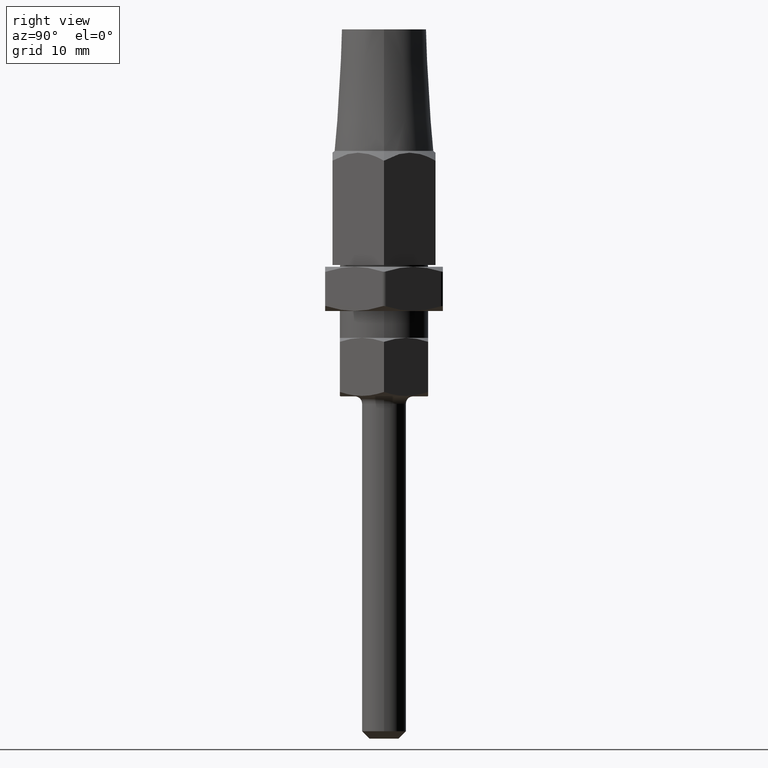
[diagram: clean part render]
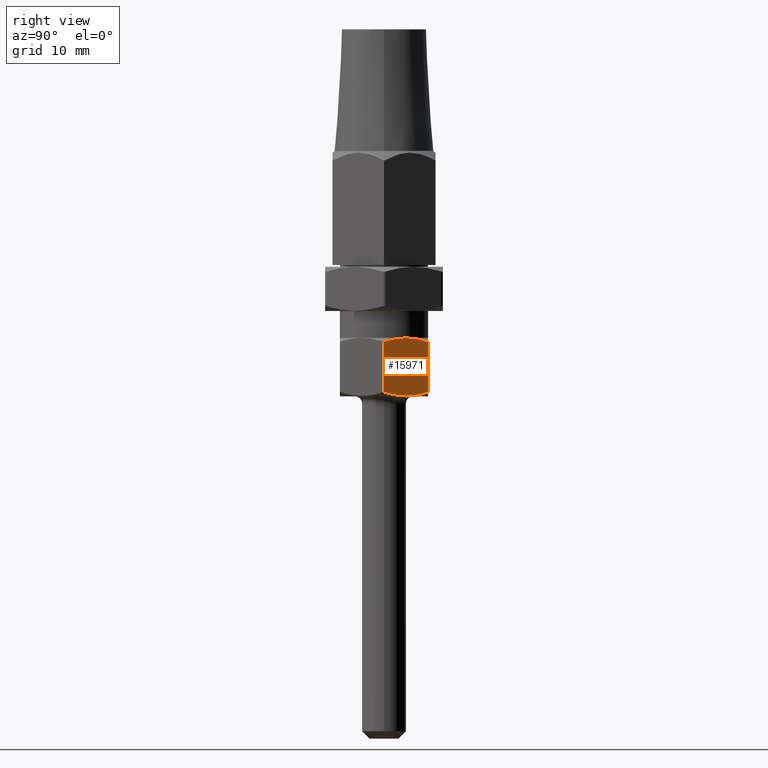
[diagram: same view with one face highlighted and labeled with its STEP entity id]
A machine part, right view. The second image highlights one B-rep face of the part: STEP entity #15971.
In plain terms, the highlighted planar face has unit normal (-0.866, -0.5, 0).
Its self-contained STEP definition (entity closure, byte-faithful):
#140 = B_SPLINE_CURVE_WITH_KNOTS ( 'NONE', 3,
 ( #6155, #10495, #7708, #2280 ),
 .UNSPECIFIED., .F., .F.,
 ( 4, 4 ),
 ( 2.380733613611680200E-007, 0.003505341872360753900 ),
 .UNSPECIFIED. ) ;
#553 = CARTESIAN_POINT ( 'NONE',  ( 6.928203230275509700, 1.677898197930134900E-015, 3.406366588218800600 ) ) ;
#1102 = CARTESIAN_POINT ( 'NONE',  ( 6.928203230275509700, 1.664489993444656200E-015, -3.406366588218800600 ) ) ;
#1443 = VECTOR ( 'NONE', #10882, 1000.000000000000000 ) ;
#2280 = CARTESIAN_POINT ( 'NONE',  ( 5.196152422706631100, 3.000000000000001800, 3.942264973081039500 ) ) ;
#2311 = ORIENTED_EDGE ( 'NONE', *, *, #3334, .T. ) ;
#2651 = EDGE_CURVE ( 'NONE', #7138, #5567, #3890, .T. ) ;
#2715 = CARTESIAN_POINT ( 'NONE',  ( 4.611598908285273500, 4.012476386720739400, -3.881079275436079900 ) ) ;
#2751 = CARTESIAN_POINT ( 'NONE',  ( 5.196152422706631100, 3.000000000000001800, 3.942264973081039500 ) ) ;
#3043 = CARTESIAN_POINT ( 'NONE',  ( 3.464101615137753100, 6.000000000000000000, -3.406366588218801900 ) ) ;
#3256 = CARTESIAN_POINT ( 'NONE',  ( 4.466251078394108700, 4.264226212862111800, -3.844809897378814100 ) ) ;
#3334 = EDGE_CURVE ( 'NONE', #12880, #13491, #140, .T. ) ;
#3609 = B_SPLINE_CURVE_WITH_KNOTS ( 'NONE', 3,
 ( #17618, #7940, #8044, #17497, #8171, #5322, #3900, #10727 ),
 .UNSPECIFIED., .F., .F.,
 ( 4, 2, 2, 4 ),
 ( 0.003505341872360753900, 0.004378342180183217600, 0.005251342488005681000, 0.006997343103650608500 ),
 .UNSPECIFIED. ) ;
#3756 = CARTESIAN_POINT ( 'NONE',  ( 5.788485582335111300, 1.974048872515669100, -3.941512638113001900 ) ) ;
#3843 = ORIENTED_EDGE ( 'NONE', *, *, #2651, .T. ) ;
#3890 = B_SPLINE_CURVE_WITH_KNOTS ( 'NONE', 3,
 ( #12781, #7783, #3756, #5190, #9760, #2715, #3256, #15497, #12541, #13853 ),
 .UNSPECIFIED., .F., .F.,
 ( 4, 2, 2, 2, 4 ),
 ( 2.380733613614408500E-007, 0.003498790588505983800, 0.004373428717292140100, 0.005248066846078297700, 0.006997343103650610300 ),
 .UNSPECIFIED. ) ;
#3900 = CARTESIAN_POINT ( 'NONE',  ( 6.645570075414236800, 0.4895349841232097300, 3.569544916260178000 ) ) ;
#4587 = CARTESIAN_POINT ( 'NONE',  ( 6.928203230275509700, 1.648395141703930100E-015, 4.000000000000000000 ) ) ;
#4710 = VERTEX_POINT ( 'NONE', #553 ) ;
#5037 = CARTESIAN_POINT ( 'NONE',  ( 6.928203230275509700, 1.648395141703930100E-015, 4.000000000000000000 ) ) ;
#5190 = CARTESIAN_POINT ( 'NONE',  ( 5.052205529410978000, 3.249323332779765500, -3.942450422601369000 ) ) ;
#5322 = CARTESIAN_POINT ( 'NONE',  ( 6.360578873103719400, 0.9831542262351662400, 3.704251809868450300 ) ) ;
#5372 = CARTESIAN_POINT ( 'NONE',  ( 3.464101615137753100, 6.000000000000000000, 4.000000000000000000 ) ) ;
#5506 = ORIENTED_EDGE ( 'NONE', *, *, #16025, .T. ) ;
#5567 = VERTEX_POINT ( 'NONE', #3043 ) ;
#5603 = LINE ( 'NONE', #4587, #14828 ) ;
#6155 = CARTESIAN_POINT ( 'NONE',  ( 3.464101615137753100, 6.000000000000000000, 3.406366588218801900 ) ) ;
#7138 = VERTEX_POINT ( 'NONE', #1102 ) ;
#7667 = CARTESIAN_POINT ( 'NONE',  ( 3.464101615137753100, 6.000000000000000000, 3.406366588218801900 ) ) ;
#7708 = CARTESIAN_POINT ( 'NONE',  ( 4.605971403831827800, 4.022223510353925700, 3.942264973081043500 ) ) ;
#7783 = CARTESIAN_POINT ( 'NONE',  ( 6.362581430472010500, 0.9796856951282151300, -3.732928486595476600 ) ) ;
#7872 = PLANE ( 'NONE',  #13364 ) ;
#7940 = CARTESIAN_POINT ( 'NONE',  ( 5.343146132649186700, 2.745399425986449100, 3.942264973081042600 ) ) ;
#8044 = CARTESIAN_POINT ( 'NONE',  ( 5.490798917257677700, 2.489657301165522500, 3.929598313588521700 ) ) ;
#8171 = CARTESIAN_POINT ( 'NONE',  ( 5.927954071859787200, 1.732482362604041500, 3.844275159928911100 ) ) ;
#9334 = EDGE_CURVE ( 'NONE', #12880, #5567, #10488, .T. ) ;
#9760 = CARTESIAN_POINT ( 'NONE',  ( 4.904256917563903300, 3.505577845408188500, -3.929924316211344000 ) ) ;
#10270 = ORIENTED_EDGE ( 'NONE', *, *, #9334, .F. ) ;
#10488 = LINE ( 'NONE', #5372, #1443 ) ;
#10495 = CARTESIAN_POINT ( 'NONE',  ( 4.030782581253297400, 5.018479775005660700, 3.733539996550853300 ) ) ;
#10727 = CARTESIAN_POINT ( 'NONE',  ( 6.928203230275509700, 1.677898197930134900E-015, 3.406366588218800600 ) ) ;
#10882 = DIRECTION ( 'NONE',  ( -0.0000000000000000000, -0.0000000000000000000, -1.000000000000000000 ) ) ;
#12541 = CARTESIAN_POINT ( 'NONE',  ( 3.747265013232527600, 5.509546607656003100, -3.569851052333777600 ) ) ;
#12781 = CARTESIAN_POINT ( 'NONE',  ( 6.928203230275509700, 1.664489993444656200E-015, -3.406366588218800600 ) ) ;
#12880 = VERTEX_POINT ( 'NONE', #7667 ) ;
#13364 = AXIS2_PLACEMENT_3D ( 'NONE', #5037, #15964, #14674 ) ;
#13491 = VERTEX_POINT ( 'NONE', #2751 ) ;
#13767 = EDGE_LOOP ( 'NONE', ( #15999, #3843, #10270, #2311, #5506 ) ) ;
#13853 = CARTESIAN_POINT ( 'NONE',  ( 3.464101615137753100, 6.000000000000000000, -3.406366588218801900 ) ) ;
#14674 = DIRECTION ( 'NONE',  ( 0.5000000000000003300, -0.8660254037844383700, 0.0000000000000000000 ) ) ;
#14828 = VECTOR ( 'NONE', #17006, 1000.000000000000000 ) ;
#15063 = EDGE_CURVE ( 'NONE', #4710, #7138, #5603, .T. ) ;
#15497 = CARTESIAN_POINT ( 'NONE',  ( 4.032795311179119000, 5.014993624512225500, -3.704757196719679500 ) ) ;
#15964 = DIRECTION ( 'NONE',  ( -0.8660254037844384900, -0.5000000000000004400, 0.0000000000000000000 ) ) ;
#15971 = ADVANCED_FACE ( 'NONE', ( #17579 ), #7872, .F. ) ;
#15999 = ORIENTED_EDGE ( 'NONE', *, *, #15063, .T. ) ;
#16025 = EDGE_CURVE ( 'NONE', #13491, #4710, #3609, .T. ) ;
#17006 = DIRECTION ( 'NONE',  ( -0.0000000000000000000, -0.0000000000000000000, -1.000000000000000000 ) ) ;
#17497 = CARTESIAN_POINT ( 'NONE',  ( 5.782886965491618600, 1.983745961340706000, 3.880579849810365200 ) ) ;
#17579 = FACE_OUTER_BOUND ( 'NONE', #13767, .T. ) ;
#17618 = CARTESIAN_POINT ( 'NONE',  ( 5.196152422706631100, 3.000000000000001800, 3.942264973081039500 ) ) ;